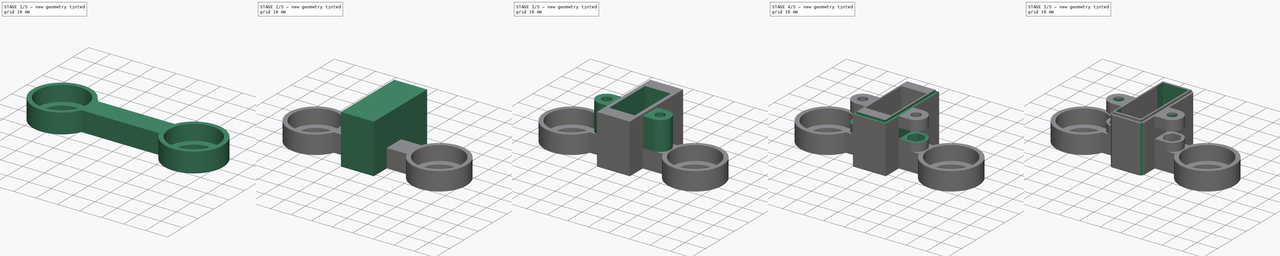
[diagram: build sequence overview — one tinted view per stage of 5, left to right]
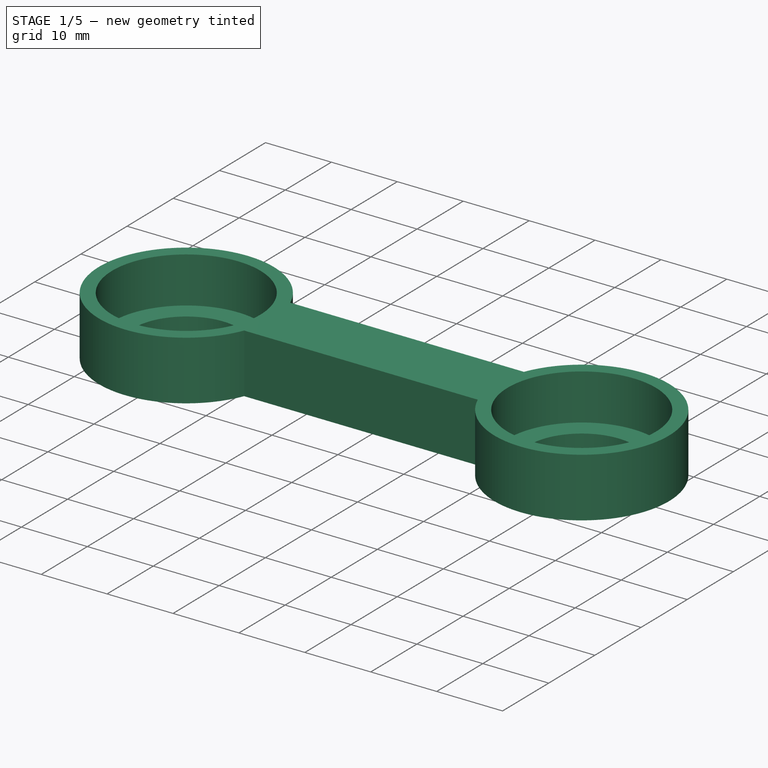
[diagram: stage 1 of 5 — iso view after this stage's code; geometry added in this stage tinted green]
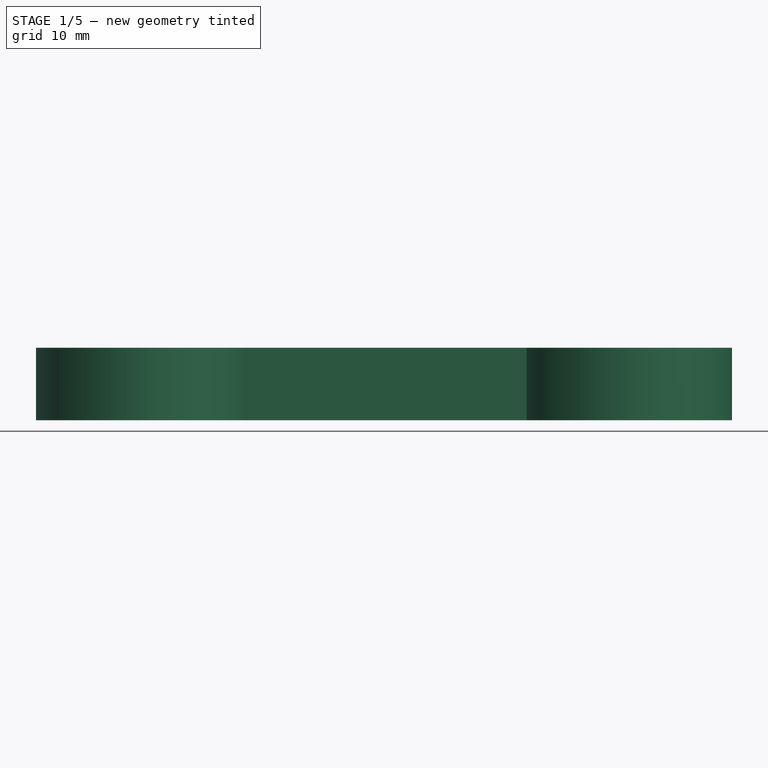
[diagram: stage 1 of 5 — front view after this stage's code; geometry added in this stage tinted green]
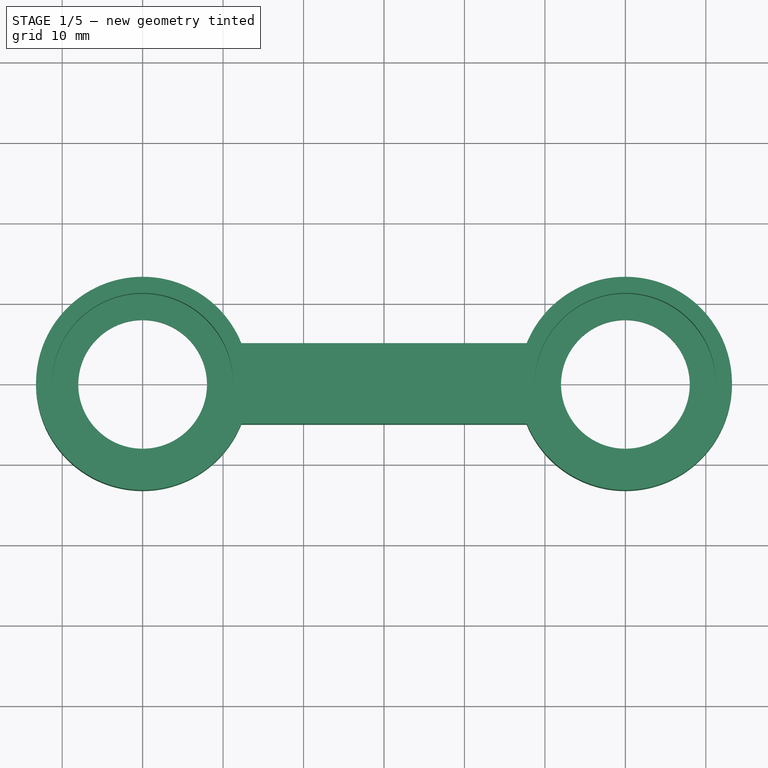
[diagram: stage 1 of 5 — top view after this stage's code; geometry added in this stage tinted green]
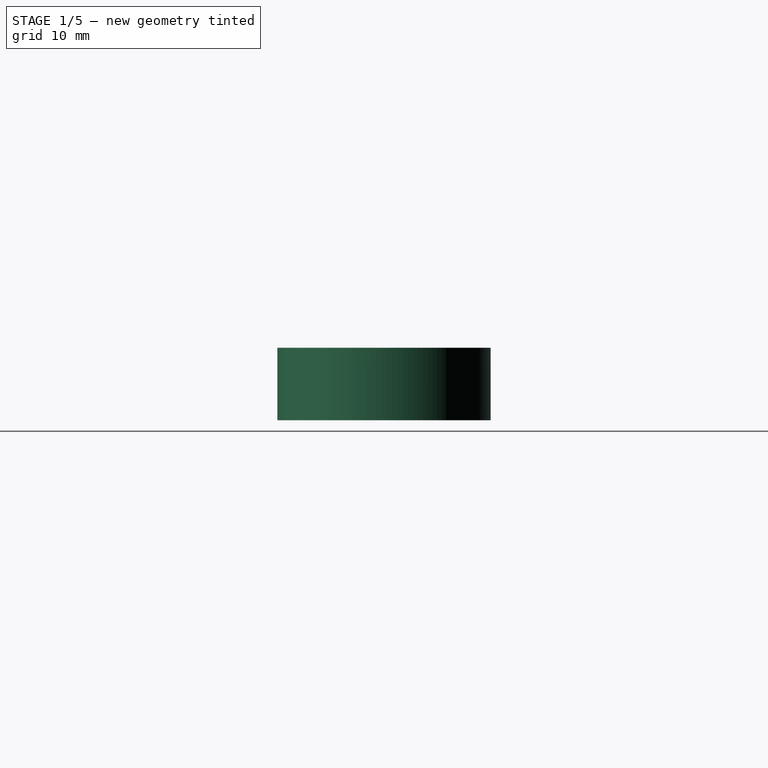
[diagram: stage 1 of 5 — right view after this stage's code; geometry added in this stage tinted green]
FCSTD DOCUMENT  (FreeCAD 1.0R38641 +678 (Git))
Label: servo-box
License: All rights reserved
LicenseURL: https://en.wikipedia.org/wiki/All_rights_reserved
objects: Sketcher::SketchObject×15, PartDesign::Pocket×11, PartDesign::Pad×4, PartDesign::Fillet×1, PartDesign::Body×1
note: 79 computed .brp shape members not serialized (recipe doc carries the construction recipe); baked Part::Feature solids carry a one-line shape summary decoded from their .brp

FEATURE [Sketcher::SketchObject] Sketch033
  ArcFitTolerance = 0
  AttachmentSupport = -> [XY_Plane004]
  FullyConstrained = true
  MakeInternals = false
  MapMode = 5
  sketch-geometry (4):
    g0: ArcOfCircle CenterX=-0.000782384 CenterY=0 CenterZ=0 NormalX=0 NormalY=0 NormalZ=1 AngleXU=0 Radius=13.25 StartAngle=0.386942 EndAngle=5.89624
    g1: ArcOfCircle CenterX=60 CenterY=-1.33e-14 CenterZ=0 NormalX=0 NormalY=0 NormalZ=1 AngleXU=0 Radius=13.25 StartAngle=3.52853 EndAngle=9.03784
    g2: LineSegment StartX=12.2696 StartY=5 StartZ=0 EndX=47.7296 EndY=5 EndZ=0
    g3: LineSegment StartX=12.2696 StartY=-5 StartZ=0 EndX=47.7296 EndY=-5 EndZ=0
  constraints (14):
    c: Diameter(g0) = 26.5
    c: Diameter(g1) = 26.5
    c: Horizontal(g2)
    c: Horizontal(g3)
    c: Coincident(g2,g0)
    c: Coincident(g3,g0)
    c: Coincident(g2,g1)
    c: Coincident(g3,g1)
    c: DistanceX(g2,g2) = 35.46
    c: DistanceX(g3,g3) = 35.46
    c: PointOnObject(g0,g-1)
    c: Distance(g0,g2) = 5
    c: Distance(g0,g3) = 5
    c: DistanceX(g-2,g1) = 60
FEATURE [PartDesign::Pad] Pad013
  Direction = (0,0,1)
  Length = 9
  Length2 = 10
  Profile = -> Sketch033
  ReferenceAxis = -> Sketch033 [N_Axis]
  Suppressed = false
  Type = 0
FEATURE [Sketcher::SketchObject] Sketch034
  ArcFitTolerance = 0
  AttachmentSupport = -> [Pad013]
  FullyConstrained = true
  MakeInternals = false
  MapMode = 5
  Placement = pos=(0,0,9) rot=(0,0,1;0rad)
  sketch-geometry (2):
    g0: Circle CenterX=0 CenterY=0 CenterZ=0 NormalX=0 NormalY=0 NormalZ=1 AngleXU=0 Radius=11.25
    g1: Circle CenterX=60 CenterY=0 CenterZ=0 NormalX=0 NormalY=0 NormalZ=1 AngleXU=0 Radius=11.25
  constraints (5):
    c: Coincident(g0,g-1)
    c: Diameter(g0) = 22.5
    c: PointOnObject(g1,g-1)
    c: Equal(g1,g0)
    c: Distance(g1,g0) = 60
FEATURE [PartDesign::Pocket] Pocket003
  BaseFeature = -> Pad013
  Direction = (0,0,-1)
  Length = 7
  Length2 = 5
  Profile = -> Sketch034
  ReferenceAxis = -> Sketch034 [N_Axis]
  Suppressed = false
  Type = 0
FEATURE [Sketcher::SketchObject] Sketch035
  ArcFitTolerance = 0
  AttachmentSupport = -> [Pocket003]
  FullyConstrained = true
  MakeInternals = false
  MapMode = 5
  Placement = pos=(0,0,0) rot=(1,0,0;3.14159rad)
  sketch-geometry (2):
    g0: Circle CenterX=0 CenterY=0 CenterZ=0 NormalX=0 NormalY=0 NormalZ=1 AngleXU=0 Radius=8
    g1: Circle CenterX=60 CenterY=0 CenterZ=0 NormalX=0 NormalY=0 NormalZ=1 AngleXU=0 Radius=8
  constraints (5):
    c: Coincident(g0,g-1)
    c: Diameter(g0) = 16
    c: PointOnObject(g1,g-1)
    c: Equal(g1,g0)
    c: Distance(g0,g1) = 60
FEATURE [PartDesign::Pocket] Pocket004
  BaseFeature = -> Pocket003
  Direction = (0,0,1)
  Length = 5
  Length2 = 5
  Profile = -> Sketch035
  ReferenceAxis = -> Sketch035 [N_Axis]
  Suppressed = false
  Type = 0
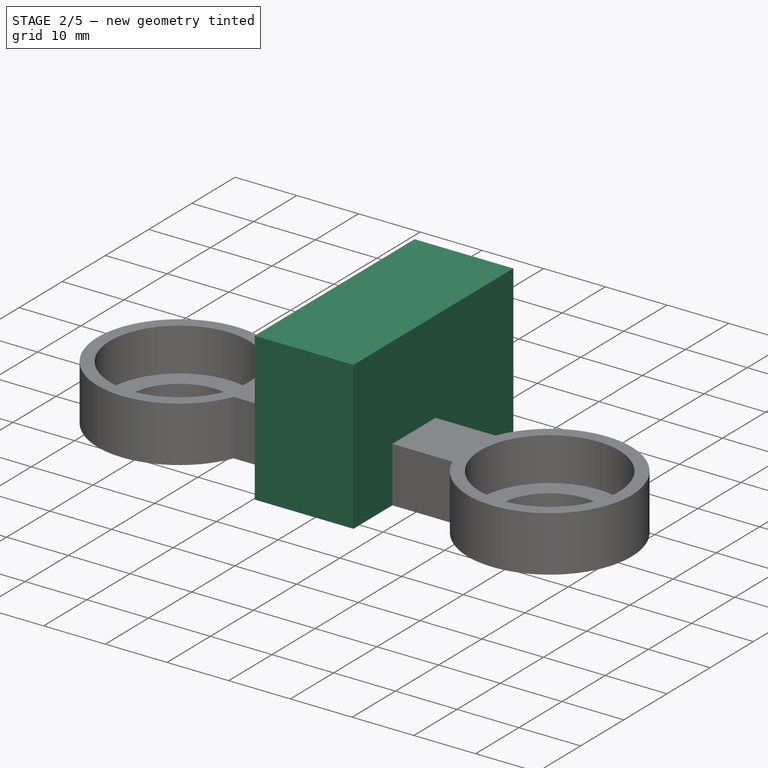
[diagram: stage 2 of 5 — iso view after this stage's code; geometry added in this stage tinted green]
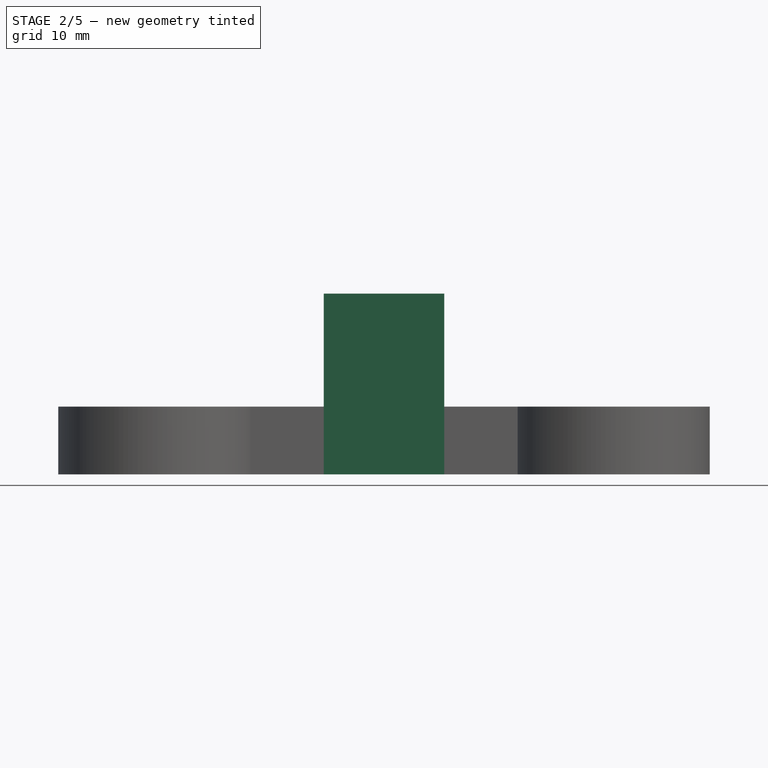
[diagram: stage 2 of 5 — front view after this stage's code; geometry added in this stage tinted green]
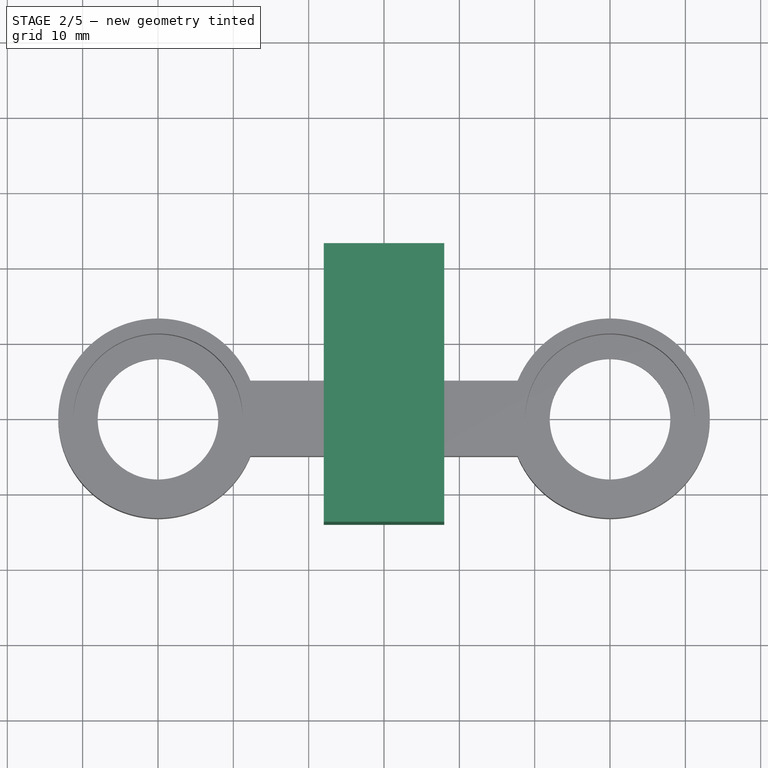
[diagram: stage 2 of 5 — top view after this stage's code; geometry added in this stage tinted green]
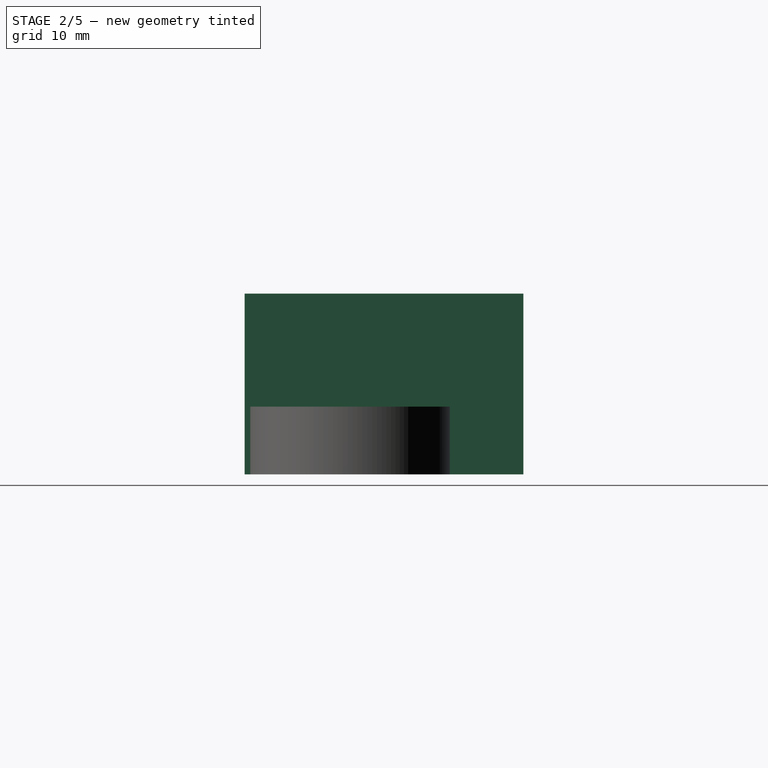
[diagram: stage 2 of 5 — right view after this stage's code; geometry added in this stage tinted green]
FEATURE [Sketcher::SketchObject] Sketch040
  ArcFitTolerance = 0
  AttachmentSupport = -> [Pocket004]
  FullyConstrained = true
  MakeInternals = false
  MapMode = 5
  Placement = pos=(0,0,0) rot=(1,0,0;3.14159rad)
  sketch-geometry (4):
    g0: LineSegment StartX=38 StartY=-23 StartZ=0 EndX=22 EndY=-23 EndZ=0
    g1: LineSegment StartX=22 StartY=-23 StartZ=0 EndX=22 EndY=14 EndZ=0
    g2: LineSegment StartX=22 StartY=14 StartZ=0 EndX=38 EndY=14 EndZ=0
    g3: LineSegment StartX=38 StartY=14 StartZ=0 EndX=38 EndY=-23 EndZ=0
  constraints (12):
    c: Horizontal(g0)
    c: Coincident(g1,g0)
    c: Vertical(g1)
    c: Coincident(g2,g1)
    c: Horizontal(g2)
    c: Coincident(g3,g2)
    c: Coincident(g3,g0)
    c: Vertical(g3)
    c: Distance(g1) = 37
    c: Distance(g-1,g2) = 14
    c: DistanceX(g0,g0) = 16
    c: Distance(g-1,g1) = 22
FEATURE [PartDesign::Pad] Pad016
  BaseFeature = -> Pocket004
  Direction = (0,0,-1)
  Length = 24
  Length2 = 10
  Profile = -> Sketch040
  ReferenceAxis = -> Sketch040 [N_Axis]
  Reversed = true
  Suppressed = false
  Type = 0
FEATURE [Sketcher::SketchObject] Sketch042
  ArcFitTolerance = 0
  FullyConstrained = true
  MakeInternals = false
  MapMode = 5
  Placement = pos=(0,0,0) rot=(1,0,0;3.14159rad)
  sketch-geometry (8):
    g0: LineSegment StartX=22 StartY=-16 StartZ=0 EndX=38 EndY=-16 EndZ=0
    g1: LineSegment StartX=38 StartY=-16 StartZ=0 EndX=38 EndY=-23 EndZ=0
    g2: LineSegment StartX=38 StartY=-23 StartZ=0 EndX=22 EndY=-23 EndZ=0
    g3: LineSegment StartX=22 StartY=-23 StartZ=0 EndX=22 EndY=-16 EndZ=0
    g4: LineSegment StartX=22 StartY=7 StartZ=0 EndX=38 EndY=7 EndZ=0
    g5: LineSegment StartX=38 StartY=7 StartZ=0 EndX=38 EndY=14 EndZ=0
    g6: LineSegment StartX=38 StartY=14 StartZ=0 EndX=22 EndY=14 EndZ=0
    g7: LineSegment StartX=22 StartY=14 StartZ=0 EndX=22 EndY=7 EndZ=0
  constraints (24):
    c: Coincident(g0,g1)
    c: Coincident(g1,g2)
    c: Coincident(g2,g3)
    c: Coincident(g3,g0)
    c: Horizontal(g0)
    c: Horizontal(g2)
    c: Vertical(g1)
    c: Vertical(g3)
    c: Coincident(g4,g5)
    c: Coincident(g5,g6)
    c: Coincident(g6,g7)
    c: Coincident(g7,g4)
    c: Horizontal(g4)
    c: Horizontal(g6)
    c: Vertical(g5)
    c: Vertical(g7)
    c: DistanceX(g6,g6) = 16
    c: DistanceY(g5,g5) = 7
    c: Equal(g2,g6)
    c: Equal(g1,g5)
    c: Distance(g-1,g4) = 7
    c: Distance(g-1,g7) = 22
    c: Distance(g-1,g0) = 16
    c: Distance(g-1,g3) = 22
FEATURE [PartDesign::Pad] Pad017
  BaseFeature = -> Pad016
  Direction = (0,-1e-16,-1)
  Length = 12
  Length2 = 10
  Profile = -> Sketch042
  ReferenceAxis = -> Sketch042 [N_Axis]
  Reversed = true
  Suppressed = false
  Type = 0
FEATURE [Sketcher::SketchObject] Sketch043
  ArcFitTolerance = 0
  AttachmentSupport = -> [Pad017]
  FullyConstrained = true
  MakeInternals = false
  MapMode = 5
  Placement = pos=(0,0,0) rot=(1,0,0;3.14159rad)
  sketch-geometry (8):
    g0: LineSegment StartX=23.75 StartY=7 StartZ=0 EndX=36.25 EndY=7 EndZ=0
    g1: LineSegment StartX=36.25 StartY=7 StartZ=0 EndX=36.25 EndY=12.25 EndZ=0
    g2: LineSegment StartX=36.25 StartY=12.25 StartZ=0 EndX=23.75 EndY=12.25 EndZ=0
    g3: LineSegment StartX=23.75 StartY=12.25 StartZ=0 EndX=23.75 EndY=7 EndZ=0
    g4: LineSegment StartX=23.75 StartY=-16 StartZ=0 EndX=36.25 EndY=-16 EndZ=0
    g5: LineSegment StartX=36.25 StartY=-16 StartZ=0 EndX=36.25 EndY=-21.25 EndZ=0
    g6: LineSegment StartX=36.25 StartY=-21.25 StartZ=0 EndX=23.75 EndY=-21.25 EndZ=0
    g7: LineSegment StartX=23.75 StartY=-21.25 StartZ=0 EndX=23.75 EndY=-16 EndZ=0
  constraints (24):
    c: Coincident(g0,g1)
    c: Coincident(g1,g2)
    c: Coincident(g2,g3)
    c: Coincident(g3,g0)
    c: Horizontal(g0)
    c: Horizontal(g2)
    c: Vertical(g1)
    c: Vertical(g3)
    c: Coincident(g4,g5)
    c: Coincident(g5,g6)
    c: Coincident(g6,g7)
    c: Coincident(g7,g4)
    c: Horizontal(g4)
    c: Horizontal(g6)
    c: Vertical(g5)
    c: Vertical(g7)
    c: DistanceX(g2,g2) = 12.5
    c: DistanceY(g1,g1) = 5.25
    c: Equal(g1,g5)
    c: Equal(g2,g4)
    c: Distance(g-1,g4) = 16
    c: Distance(g-1,g7) = 23.75
    c: Distance(g-1,g3) = 23.75
    c: Distance(g-1,g0) = 7
FEATURE [PartDesign::Pocket] Pocket008
  BaseFeature = -> Pad017
  Direction = (0,0,1)
  Length = 10
  Length2 = 5
  Profile = -> Sketch043
  ReferenceAxis = -> Sketch043 [N_Axis]
  Suppressed = false
  Type = 0
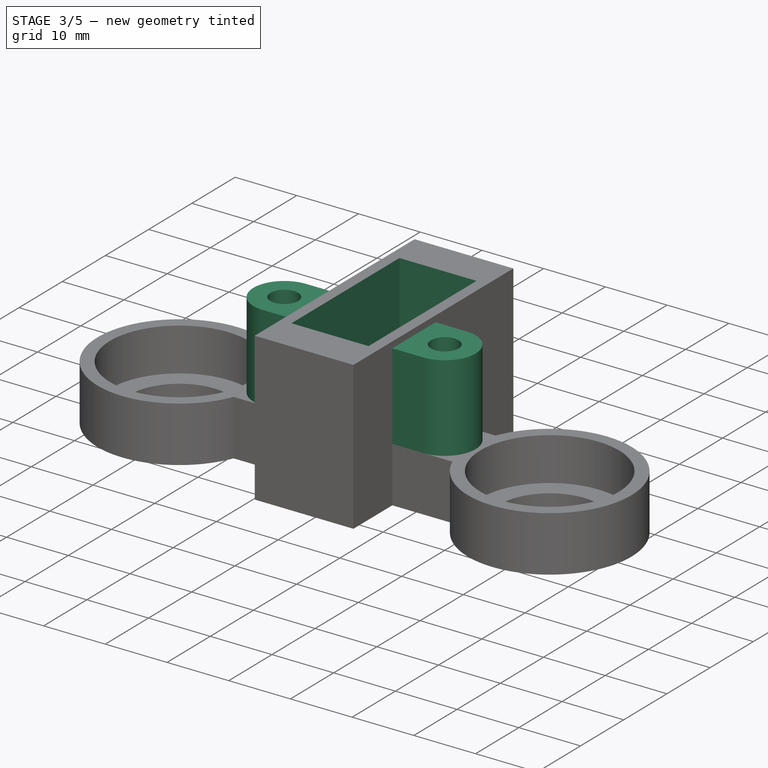
[diagram: stage 3 of 5 — iso view after this stage's code; geometry added in this stage tinted green]
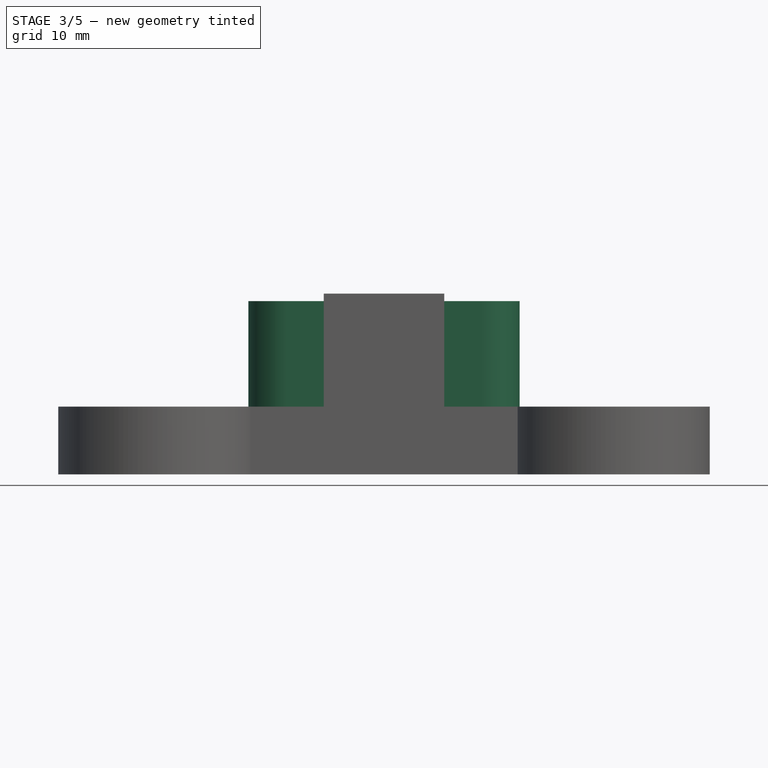
[diagram: stage 3 of 5 — front view after this stage's code; geometry added in this stage tinted green]
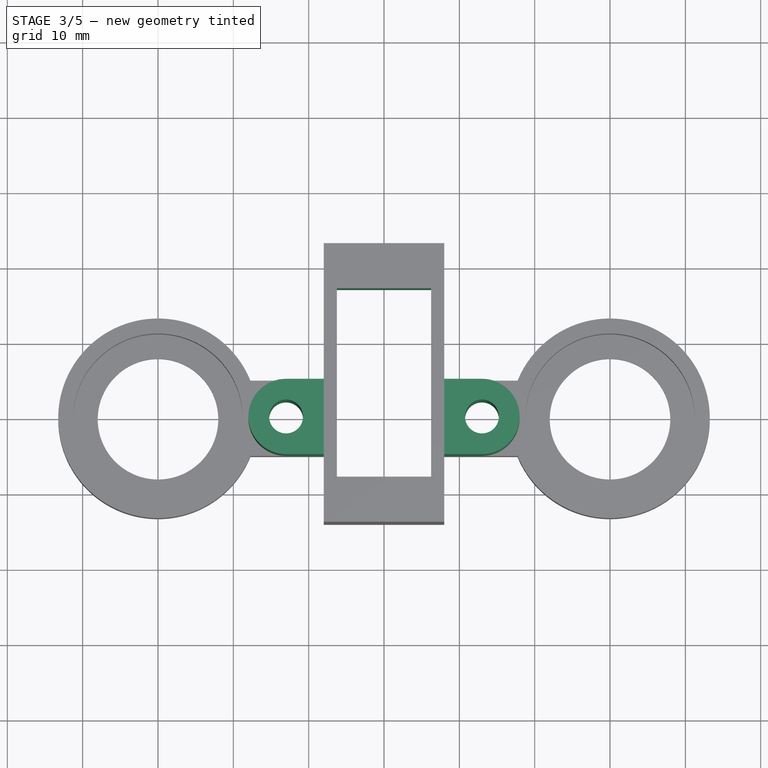
[diagram: stage 3 of 5 — top view after this stage's code; geometry added in this stage tinted green]
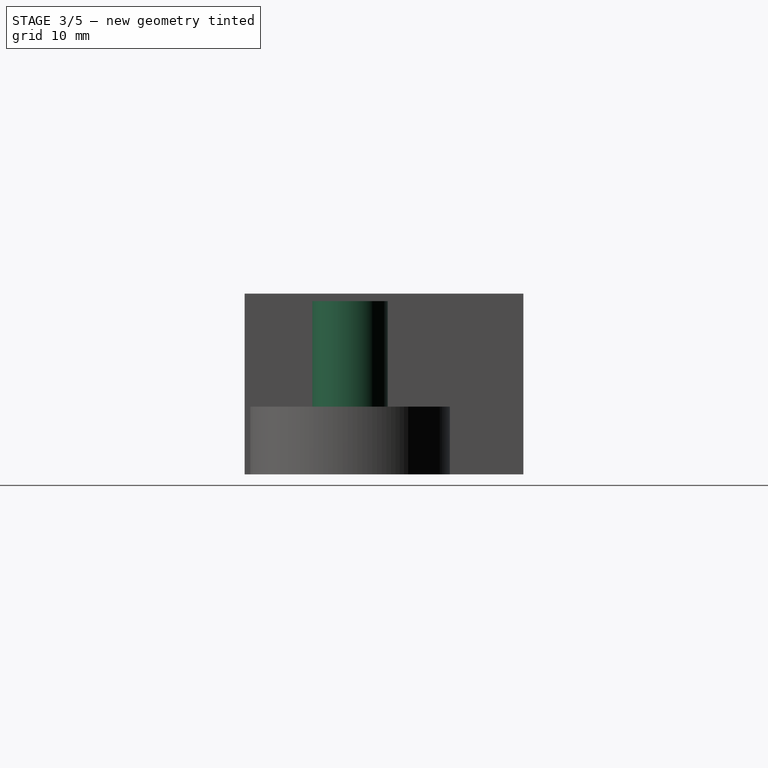
[diagram: stage 3 of 5 — right view after this stage's code; geometry added in this stage tinted green]
FEATURE [Sketcher::SketchObject] Sketch044
  ArcFitTolerance = 0
  AttachmentSupport = -> [Pocket008]
  FullyConstrained = true
  MakeInternals = false
  MapMode = 5
  Placement = pos=(0,0,10) rot=(1,0,0;3.14159rad)
  sketch-geometry (2):
    g0: Circle CenterX=30 CenterY=-19 CenterZ=0 NormalX=0 NormalY=0 NormalZ=1 AngleXU=0 Radius=1
    g1: Circle CenterX=30 CenterY=10 CenterZ=0 NormalX=0 NormalY=0 NormalZ=1 AngleXU=0 Radius=1
  constraints (6):
    c: Diameter(g0) = 2
    c: Equal(g1,g0)
    c: DistanceY(g-1,g1) = 10
    c: DistanceX(g-2,g1) = 30
    c: DistanceY(g-1,g0) = -19
    c: DistanceX(g-2,g0) = 30
FEATURE [PartDesign::Pocket] Pocket009
  BaseFeature = -> Pocket008
  Direction = (0,0,1)
  Length = 4
  Length2 = 5
  Profile = -> Sketch044
  ReferenceAxis = -> Sketch044 [N_Axis]
  Suppressed = false
  Type = 4
FEATURE [Sketcher::SketchObject] Sketch045
  ArcFitTolerance = 0
  AttachmentSupport = -> [Pocket009]
  FullyConstrained = true
  MakeInternals = false
  MapMode = 5
  Placement = pos=(0,0,0) rot=(1,0,0;3.14159rad)
  sketch-geometry (4):
    g0: LineSegment StartX=23.75 StartY=8 StartZ=0 EndX=36.25 EndY=8 EndZ=0
    g1: LineSegment StartX=36.25 StartY=8 StartZ=0 EndX=36.25 EndY=-17 EndZ=0
    g2: LineSegment StartX=36.25 StartY=-17 StartZ=0 EndX=23.75 EndY=-17 EndZ=0
    g3: LineSegment StartX=23.75 StartY=-17 StartZ=0 EndX=23.75 EndY=8 EndZ=0
  constraints (12):
    c: Coincident(g0,g1)
    c: Coincident(g1,g2)
    c: Coincident(g2,g3)
    c: Coincident(g3,g0)
    c: Horizontal(g0)
    c: Horizontal(g2)
    c: Vertical(g1)
    c: Vertical(g3)
    c: DistanceX(g0,g0) = 12.5
    c: DistanceY(g3,g3) = 25
    c: Distance(g-1,g3) = 23.75
    c: Distance(g-1,g2) = 17
FEATURE [PartDesign::Pocket] Pocket010
  BaseFeature = -> Pocket009
  Direction = (0,0,1)
  Length = 50
  Length2 = 5
  Profile = -> Sketch045
  ReferenceAxis = -> Sketch045 [N_Axis]
  Suppressed = false
  Type = 0
FEATURE [Sketcher::SketchObject] Sketch071
  ArcFitTolerance = 0
  FullyConstrained = true
  MakeInternals = false
  MapMode = 5
  Placement = pos=(0,0,9) rot=(0,0,1;0rad)
  sketch-geometry (10):
    g0: ArcOfCircle CenterX=43 CenterY=0 CenterZ=0 NormalX=0 NormalY=0 NormalZ=1 AngleXU=0 Radius=5 StartAngle=4.71239 EndAngle=7.85399
    g1: ArcOfCircle CenterX=17 CenterY=0 CenterZ=0 NormalX=0 NormalY=0 NormalZ=1 AngleXU=0 Radius=5 StartAngle=1.5708 EndAngle=4.71239
    g2: LineSegment StartX=17 StartY=5 StartZ=0 EndX=23 EndY=5 EndZ=0
    g3: LineSegment StartX=23 StartY=5 StartZ=0 EndX=23 EndY=-5 EndZ=0
    g4: LineSegment StartX=23 StartY=-5 StartZ=0 EndX=17 EndY=-5 EndZ=0
    g5: LineSegment StartX=37 StartY=5 StartZ=0 EndX=43 EndY=5 EndZ=0
    g6: LineSegment StartX=37 StartY=-5 StartZ=0 EndX=43 EndY=-5 EndZ=0
    g7: LineSegment StartX=37 StartY=5 StartZ=0 EndX=37 EndY=-5 EndZ=0
    g8: Circle CenterX=17 CenterY=0 CenterZ=0 NormalX=0 NormalY=0 NormalZ=1 AngleXU=0 Radius=2.25
    g9: Circle CenterX=43 CenterY=0 CenterZ=0 NormalX=0 NormalY=0 NormalZ=1 AngleXU=0 Radius=2.25
  constraints (28):
    c: PointOnObject(g0,g-1)
    c: PointOnObject(g1,g-1)
    c: Diameter(g0) = 10
    c: Diameter(g1) = 10
    c: DistanceX(g-2,g1) = 17
    c: DistanceX(g-2,g0) = 43
    c: Horizontal(g2)
    c: Coincident(g3,g2)
    c: Vertical(g3)
    c: Coincident(g4,g3)
    c: Horizontal(g4)
    c: Tangent(g1,g4) = 1.5708
    c: Coincident(g1,g2)
    c: Horizontal(g5)
    c: Horizontal(g6)
    c: Coincident(g7,g5)
    c: Coincident(g7,g6)
    c: Vertical(g7)
    c: Coincident(g0,g5)
    c: Tangent(g0,g6) = -1.5708
    c: Distance(g-1,g3) = 23
    c: Distance(g-1,g7) = 37
    c: DistanceY(g3,g3) = 10
    c: Equal(g7,g3)
    c: Coincident(g8,g1)
    c: Diameter(g8) = 4.5
    c: Coincident(g9,g0)
    c: Diameter(g9) = 4.5
FEATURE [PartDesign::Pad] Pad027
  BaseFeature = -> Pocket010
  Direction = (0,0,1)
  Length = 14
  Length2 = 10
  Profile = -> Sketch071
  ReferenceAxis = -> Sketch071 [N_Axis]
  Suppressed = false
  Type = 0
FEATURE [Sketcher::SketchObject] Sketch072
  ArcFitTolerance = 0
  AttachmentSupport = -> [Pad027]
  FullyConstrained = true
  MakeInternals = false
  MapMode = 5
  Placement = pos=(0,0,0) rot=(1,0,0;3.14159rad)
  sketch-geometry (2):
    g0: Circle CenterX=17 CenterY=0 CenterZ=0 NormalX=0 NormalY=0 NormalZ=1 AngleXU=0 Radius=2.25
    g1: Circle CenterX=43 CenterY=0 CenterZ=0 NormalX=0 NormalY=0 NormalZ=1 AngleXU=0 Radius=2.25
  constraints (6):
    c: PointOnObject(g0,g-1)
    c: PointOnObject(g1,g-1)
    c: Diameter(g0) = 4.5
    c: Diameter(g1) = 4.5
    c: DistanceX(g-2,g0) = 17
    c: DistanceX(g-2,g1) = 43
FEATURE [PartDesign::Pocket] Pocket026
  BaseFeature = -> Pad027
  Direction = (0,0,1)
  Length = 10
  Length2 = 5
  Profile = -> Sketch072
  ReferenceAxis = -> Sketch072 [N_Axis]
  Suppressed = false
  Type = 0
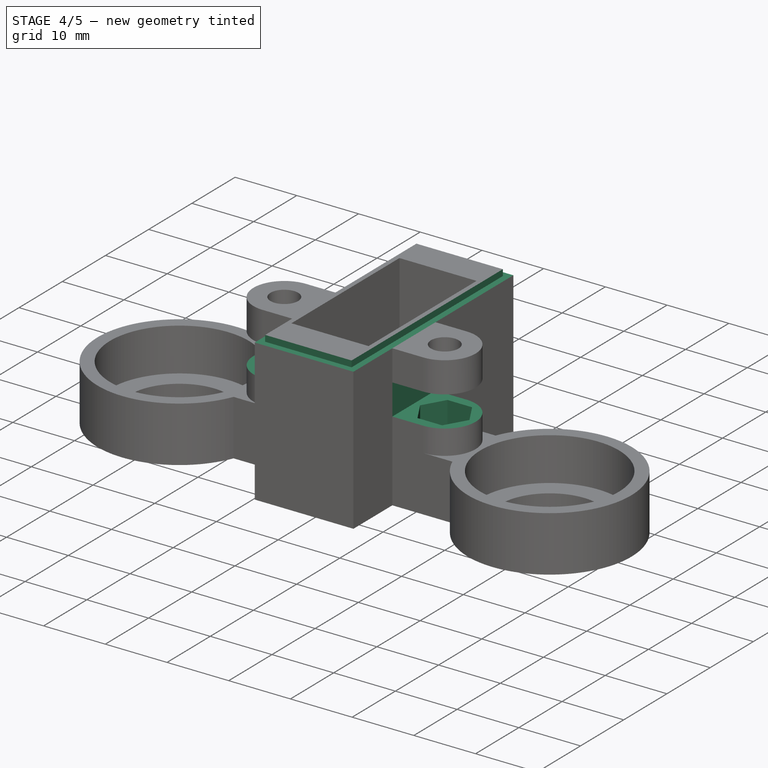
[diagram: stage 4 of 5 — iso view after this stage's code; geometry added in this stage tinted green]
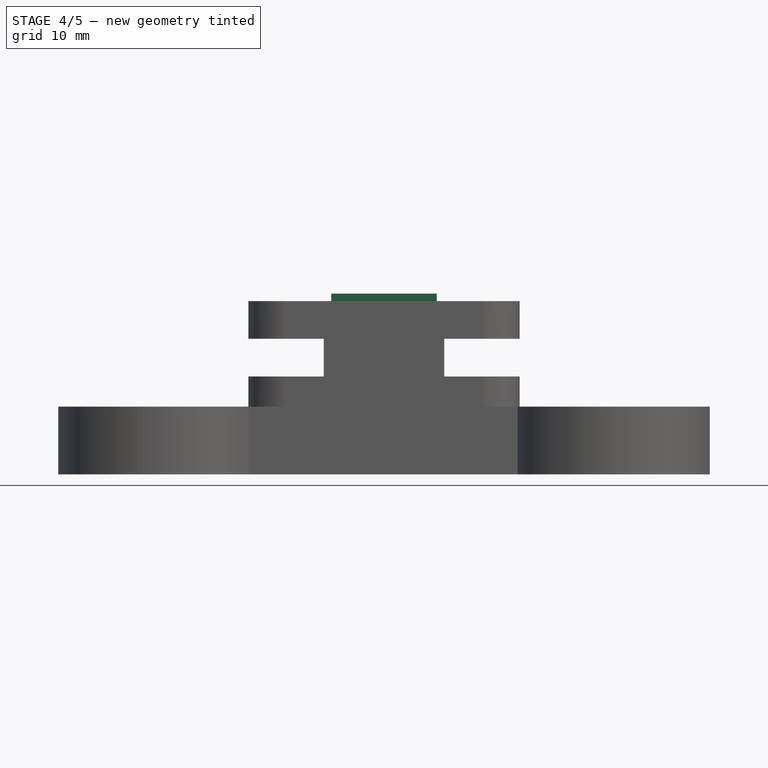
[diagram: stage 4 of 5 — front view after this stage's code; geometry added in this stage tinted green]
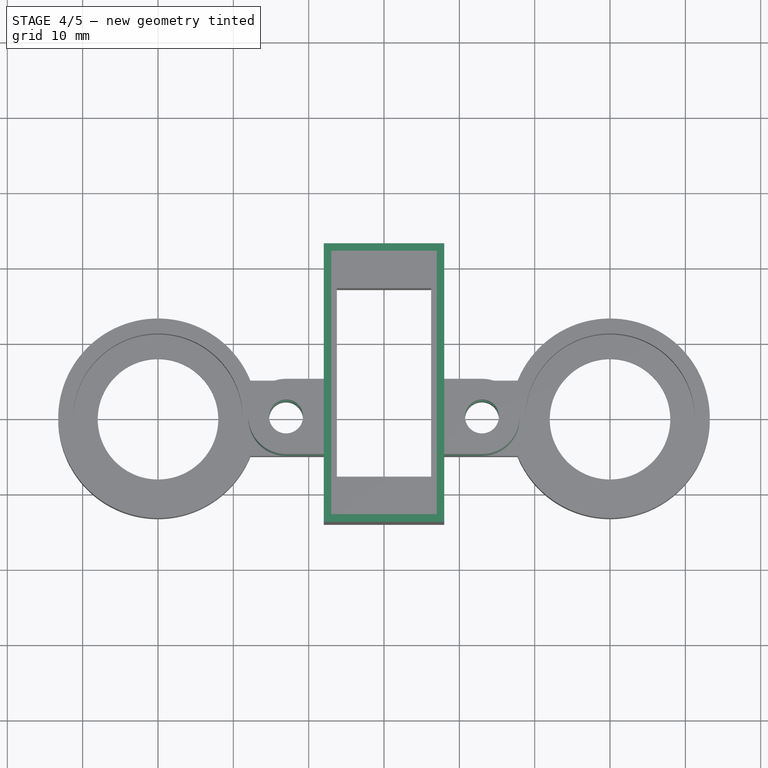
[diagram: stage 4 of 5 — top view after this stage's code; geometry added in this stage tinted green]
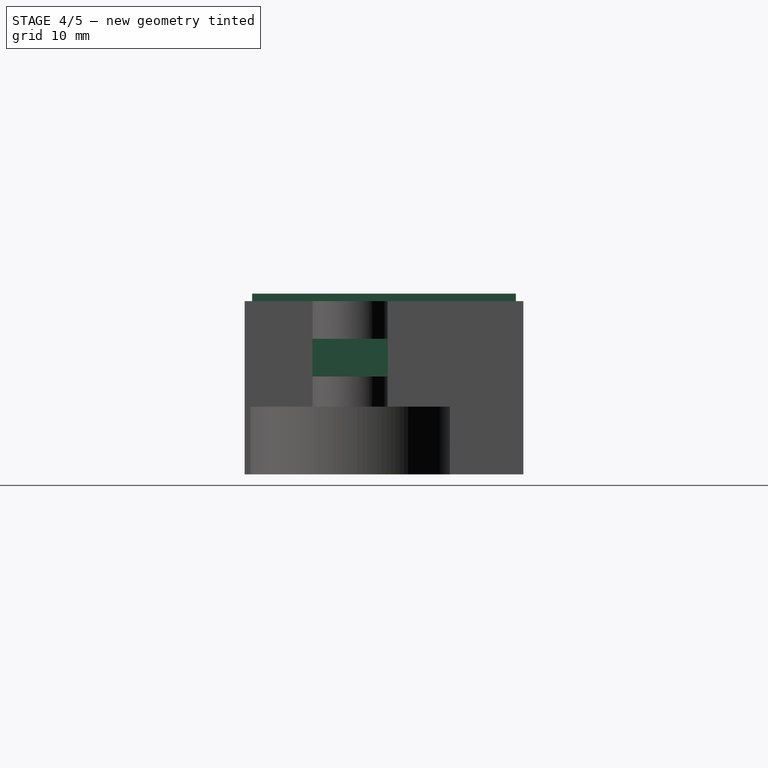
[diagram: stage 4 of 5 — right view after this stage's code; geometry added in this stage tinted green]
FEATURE [Sketcher::SketchObject] Sketch073
  ArcFitTolerance = 0
  AttachmentSupport = -> [Pocket026]
  FullyConstrained = true
  MakeInternals = false
  MapMode = 5
  Placement = pos=(0,0,24) rot=(0,0,1;0rad)
  sketch-geometry (8):
    g0: LineSegment StartX=23 StartY=22 StartZ=0 EndX=23 EndY=-13 EndZ=0
    g1: LineSegment StartX=22 StartY=-14 StartZ=0 EndX=22 EndY=23 EndZ=0
    g2: LineSegment StartX=37 StartY=22 StartZ=0 EndX=37 EndY=-13 EndZ=0
    g3: LineSegment StartX=38 StartY=-14 StartZ=0 EndX=38 EndY=23 EndZ=0
    g4: LineSegment StartX=22 StartY=23 StartZ=0 EndX=38 EndY=23 EndZ=0
    g5: LineSegment StartX=22 StartY=-14 StartZ=0 EndX=38 EndY=-14 EndZ=0
    g6: LineSegment StartX=23 StartY=-13 StartZ=0 EndX=37 EndY=-13 EndZ=0
    g7: LineSegment StartX=23 StartY=22 StartZ=0 EndX=37 EndY=22 EndZ=0
  constraints (24):
    c: Vertical(g0)
    c: Vertical(g1)
    c: Vertical(g2)
    c: Vertical(g3)
    c: Distance(g0,g2) = 14
    c: DistanceY(g0,g0) = 35
    c: Distance(g-1,g1) = 22
    c: Equal(g0,g2)
    c: Coincident(g4,g1)
    c: Coincident(g4,g3)
    c: Horizontal(g4)
    c: Coincident(g5,g1)
    c: Coincident(g5,g3)
    c: Horizontal(g5)
    c: Coincident(g6,g0)
    c: Coincident(g6,g2)
    c: Horizontal(g6)
    c: Coincident(g7,g0)
    c: Coincident(g7,g2)
    c: Horizontal(g7)
    c: DistanceX(g5,g5) = 16
    c: Distance(g2,g3) = 1
    c: Distance(g-1,g6) = 13
    c: Distance(g-1,g5) = 14
FEATURE [PartDesign::Pocket] Pocket035
  BaseFeature = -> Pocket026
  Direction = (0,0,-1)
  Length = 1
  Length2 = 5
  Profile = -> Sketch073
  ReferenceAxis = -> Sketch073 [N_Axis]
  Suppressed = false
  Type = 0
FEATURE [Sketcher::SketchObject] Sketch084
  ArcFitTolerance = 0
  AttachmentSupport = -> [Pocket035]
  FullyConstrained = true
  MakeInternals = false
  MapMode = 5
  Placement = pos=(0,-5,0) rot=(1,0,0;1.5708rad)
  sketch-geometry (8):
    g0: LineSegment StartX=22 StartY=18 StartZ=0 EndX=12 EndY=18 EndZ=0
    g1: LineSegment StartX=12 StartY=18 StartZ=0 EndX=12 EndY=13 EndZ=0
    g2: LineSegment StartX=12 StartY=13 StartZ=0 EndX=22 EndY=13 EndZ=0
    g3: LineSegment StartX=22 StartY=13 StartZ=0 EndX=22 EndY=18 EndZ=0
    g4: LineSegment StartX=38 StartY=18 StartZ=0 EndX=48 EndY=18 EndZ=0
    g5: LineSegment StartX=48 StartY=18 StartZ=0 EndX=48 EndY=13 EndZ=0
    g6: LineSegment StartX=48 StartY=13 StartZ=0 EndX=38 EndY=13 EndZ=0
    g7: LineSegment StartX=38 StartY=13 StartZ=0 EndX=38 EndY=18 EndZ=0
  constraints (24):
    c: Coincident(g0,g1)
    c: Coincident(g1,g2)
    c: Coincident(g2,g3)
    c: Coincident(g3,g0)
    c: Horizontal(g0)
    c: Horizontal(g2)
    c: Vertical(g1)
    c: Vertical(g3)
    c: Coincident(g4,g5)
    c: Coincident(g5,g6)
    c: Coincident(g6,g7)
    c: Coincident(g7,g4)
    c: Horizontal(g4)
    c: Horizontal(g6)
    c: Vertical(g5)
    c: Vertical(g7)
    c: DistanceY(g5,g5) = 5
    c: Distance(g6) = 10
    c: Equal(g5,g1)
    c: Equal(g6,g2)
    c: Distance(g-1,g1) = 12
    c: Distance(g0,g7) = 26
    c: Distance(g-1,g2) = 13
    c: Distance(g-1,g6) = 13
FEATURE [PartDesign::Pocket] Pocket036
  BaseFeature = -> Pocket035
  Direction = (0,1,-2e-16)
  Length = 10
  Length2 = 5
  Profile = -> Sketch084
  ReferenceAxis = -> Sketch084 [N_Axis]
  Suppressed = false
  Type = 0
FEATURE [Sketcher::SketchObject] Sketch085
  ArcFitTolerance = 0
  AttachmentSupport = -> [Pocket036]
  FullyConstrained = true
  MakeInternals = false
  MapMode = 5
  Placement = pos=(0,2.9e-15,13) rot=(0,0,1;0rad)
  sketch-geometry (14):
    g0: LineSegment StartX=13 StartY=0 StartZ=0 EndX=15 EndY=-3.4641 EndZ=0
    g1: LineSegment StartX=15 StartY=-3.4641 StartZ=0 EndX=19 EndY=-3.4641 EndZ=0
    g2: LineSegment StartX=19 StartY=-3.4641 StartZ=0 EndX=21 EndY=0 EndZ=0
    g3: LineSegment StartX=21 StartY=0 StartZ=0 EndX=19 EndY=3.4641 EndZ=0
    g4: LineSegment StartX=19 StartY=3.4641 StartZ=0 EndX=15 EndY=3.4641 EndZ=0
    g5: LineSegment StartX=15 StartY=3.4641 StartZ=0 EndX=13 EndY=0 EndZ=0
    g6: Circle [constr] CenterX=17 CenterY=0 CenterZ=0 NormalX=0 NormalY=0 NormalZ=1 AngleXU=0 Radius=4
    g7: LineSegment StartX=39 StartY=0 StartZ=0 EndX=41 EndY=-3.4641 EndZ=0
    g8: LineSegment StartX=41 StartY=-3.4641 StartZ=0 EndX=45 EndY=-3.4641 EndZ=0
    g9: LineSegment StartX=45 StartY=-3.4641 StartZ=0 EndX=47 EndY=0 EndZ=0
    g10: LineSegment StartX=47 StartY=0 StartZ=0 EndX=45 EndY=3.4641 EndZ=0
    g11: LineSegment StartX=45 StartY=3.4641 StartZ=0 EndX=41 EndY=3.4641 EndZ=0
    g12: LineSegment StartX=41 StartY=3.4641 StartZ=0 EndX=39 EndY=0 EndZ=0
    g13: Circle [constr] CenterX=43 CenterY=0 CenterZ=0 NormalX=0 NormalY=0 NormalZ=1 AngleXU=0 Radius=4
  constraints (34):
    c: Coincident(g0,g1)
    c: Coincident(g1,g2)
    c: Coincident(g2,g3)
    c: Coincident(g3,g4)
    c: Coincident(g4,g5)
    c: Coincident(g5,g0)
    c: Equal(g0, g1-g5) x5
    c: PointOnObject(g0,g6)
    c: PointOnObject(g1,g6)
    c: PointOnObject(g2,g6)
    c: PointOnObject(g3,g6)
    c: PointOnObject(g4,g6)
    c: PointOnObject(g5,g6)
    c: PointOnObject(g6,g-1)
    c: PointOnObject(g5,g-1)
    c: Coincident(g7,g8)
    c: Coincident(g8,g9)
    c: Coincident(g9,g10)
    c: Coincident(g10,g11)
    c: Coincident(g11,g12)
    c: Coincident(g12,g7)
    c: Equal(g7, g8-g12) x5
    c: PointOnObject(g7,g13)
    c: PointOnObject(g8,g13)
    c: PointOnObject(g9,g13)
    c: PointOnObject(g10,g13)
    c: PointOnObject(g11,g13)
    c: PointOnObject(g12,g13)
    c: PointOnObject(g13,g-1)
    c: Horizontal(g11)
    c: Diameter(g6) = 8
    c: Diameter(g13) = 8
    c: DistanceX(g-2,g6) = 17
    c: Distance(g13,g6) = 26
FEATURE [PartDesign::Pocket] Pocket037
  BaseFeature = -> Pocket036
  Direction = (0,0,-1)
  Length = 4
  Length2 = 5
  Profile = -> Sketch085
  ReferenceAxis = -> Sketch085 [N_Axis]
  Suppressed = false
  Type = 0
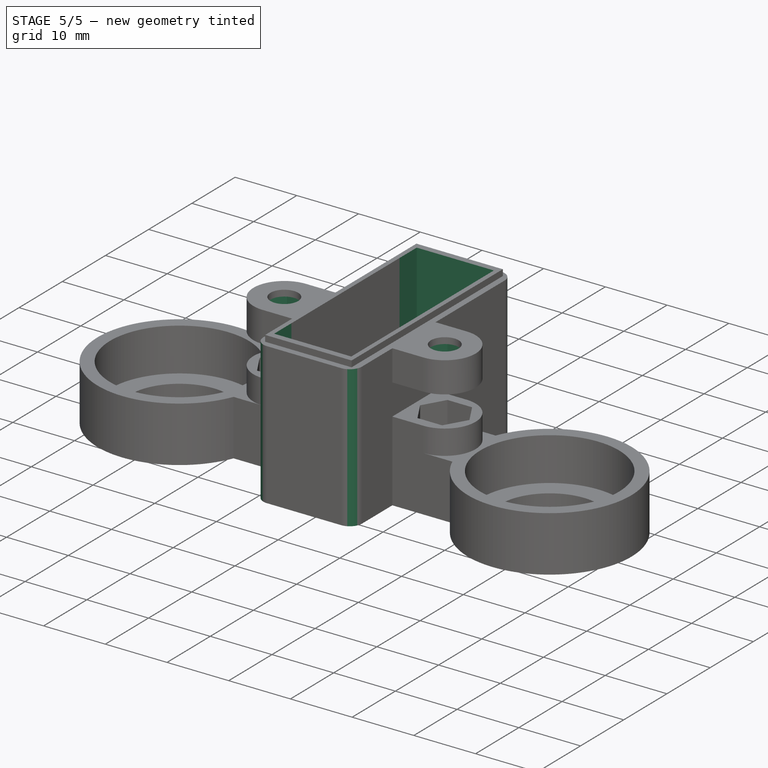
[diagram: stage 5 of 5 — iso view after this stage's code; geometry added in this stage tinted green]
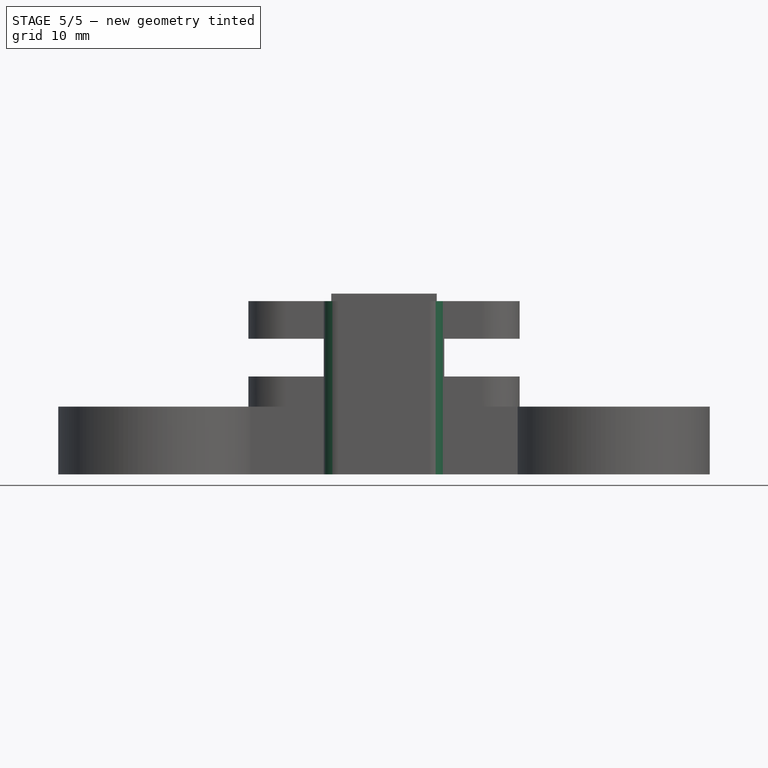
[diagram: stage 5 of 5 — front view after this stage's code; geometry added in this stage tinted green]
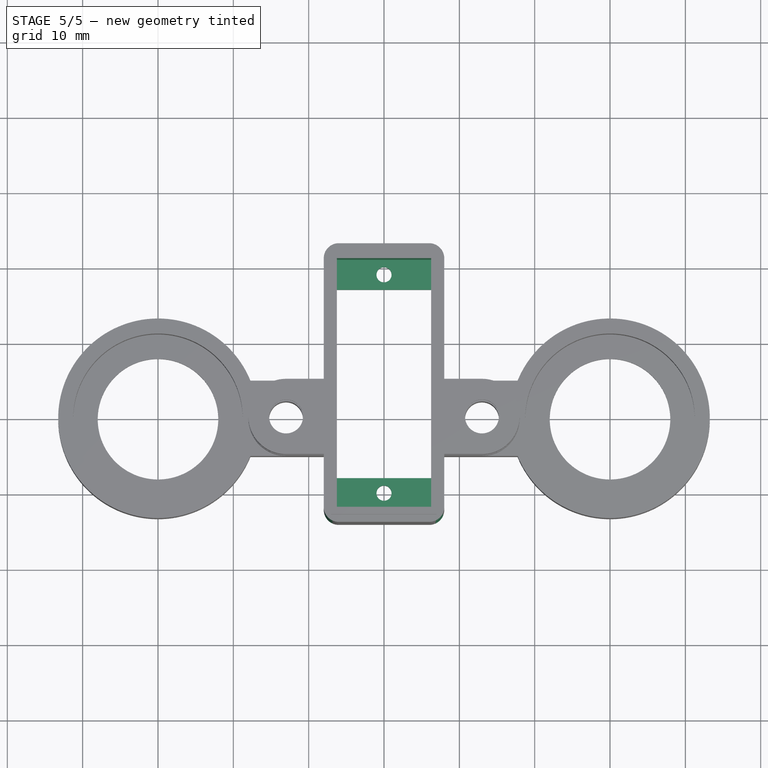
[diagram: stage 5 of 5 — top view after this stage's code; geometry added in this stage tinted green]
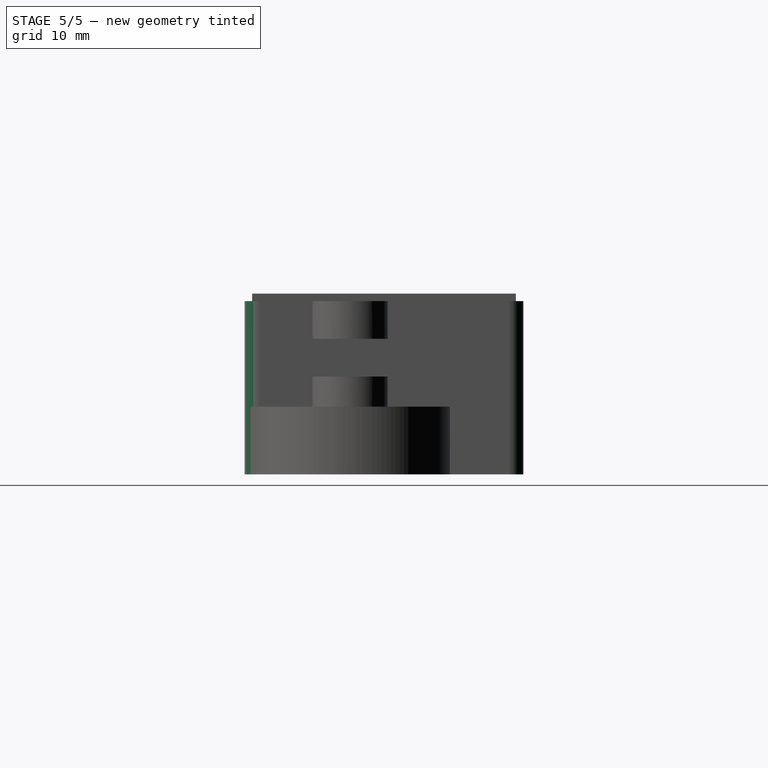
[diagram: stage 5 of 5 — right view after this stage's code; geometry added in this stage tinted green]
FEATURE [Sketcher::SketchObject] Sketch086
  ArcFitTolerance = 0
  AttachmentSupport = -> [Pocket037]
  FullyConstrained = true
  MakeInternals = false
  MapMode = 5
  Placement = pos=(0,4e-15,18) rot=(1,0,0;3.14159rad)
  sketch-geometry (14):
    g0: LineSegment StartX=13 StartY=0 StartZ=0 EndX=15 EndY=-3.4641 EndZ=0
    g1: LineSegment StartX=15 StartY=-3.4641 StartZ=0 EndX=19 EndY=-3.4641 EndZ=0
    g2: LineSegment StartX=19 StartY=-3.4641 StartZ=0 EndX=21 EndY=1.2657e-12 EndZ=0
    g3: LineSegment StartX=21 StartY=1.2657e-12 StartZ=0 EndX=19 EndY=3.4641 EndZ=0
    g4: LineSegment StartX=19 StartY=3.4641 StartZ=0 EndX=15 EndY=3.4641 EndZ=0
    g5: LineSegment StartX=15 StartY=3.4641 StartZ=0 EndX=13 EndY=0 EndZ=0
    g6: Circle [constr] CenterX=17 CenterY=0 CenterZ=0 NormalX=0 NormalY=0 NormalZ=1 AngleXU=0 Radius=4
    g7: LineSegment StartX=39 StartY=0 StartZ=0 EndX=41 EndY=-3.4641 EndZ=0
    g8: LineSegment StartX=41 StartY=-3.4641 StartZ=0 EndX=45 EndY=-3.4641 EndZ=0
    g9: LineSegment StartX=45 StartY=-3.4641 StartZ=0 EndX=47 EndY=1.50933e-11 EndZ=0
    g10: LineSegment StartX=47 StartY=1.50933e-11 StartZ=0 EndX=45 EndY=3.4641 EndZ=0
    g11: LineSegment StartX=45 StartY=3.4641 StartZ=0 EndX=41 EndY=3.4641 EndZ=0
    g12: LineSegment StartX=41 StartY=3.4641 StartZ=0 EndX=39 EndY=0 EndZ=0
    g13: Circle [constr] CenterX=43 CenterY=0 CenterZ=0 NormalX=0 NormalY=0 NormalZ=1 AngleXU=0 Radius=4
  constraints (34):
    c: Coincident(g0,g1)
    c: Coincident(g1,g2)
    c: Coincident(g2,g3)
    c: Coincident(g3,g4)
    c: Coincident(g4,g5)
    c: Coincident(g5,g0)
    c: Equal(g0, g1-g5) x5
    c: PointOnObject(g0,g6)
    c: PointOnObject(g1,g6)
    c: PointOnObject(g2,g6)
    c: PointOnObject(g3,g6)
    c: PointOnObject(g4,g6)
    c: PointOnObject(g5,g6)
    c: PointOnObject(g6,g-1)
    c: PointOnObject(g5,g-1)
    c: Coincident(g7,g8)
    c: Coincident(g8,g9)
    c: Coincident(g9,g10)
    c: Coincident(g10,g11)
    c: Coincident(g11,g12)
    c: Coincident(g12,g7)
    c: Equal(g7, g8-g12) x5
    c: PointOnObject(g7,g13)
    c: PointOnObject(g8,g13)
    c: PointOnObject(g9,g13)
    c: PointOnObject(g10,g13)
    c: PointOnObject(g11,g13)
    c: PointOnObject(g12,g13)
    c: PointOnObject(g13,g-1)
    c: PointOnObject(g12,g-1)
    c: Diameter(g6) = 8
    c: Equal(g13,g6)
    c: DistanceX(g-2,g6) = 17
    c: Distance(g6,g13) = 26
FEATURE [PartDesign::Pocket] Pocket038
  BaseFeature = -> Pocket037
  Direction = (0,0,1)
  Length = 4
  Length2 = 5
  Profile = -> Sketch086
  ReferenceAxis = -> Sketch086 [N_Axis]
  Suppressed = false
  Type = 0
FEATURE [Sketcher::SketchObject] Sketch133
  ArcFitTolerance = 0
  AttachmentSupport = -> [Pocket038]
  FullyConstrained = true
  MakeInternals = false
  MapMode = 5
  Placement = pos=(0,0,24) rot=(0,0,1;0rad)
  sketch-geometry (4):
    g0: LineSegment StartX=23.75 StartY=21 StartZ=0 EndX=36.25 EndY=21 EndZ=0
    g1: LineSegment StartX=36.25 StartY=21 StartZ=0 EndX=36.25 EndY=-12 EndZ=0
    g2: LineSegment StartX=36.25 StartY=-12 StartZ=0 EndX=23.75 EndY=-12 EndZ=0
    g3: LineSegment StartX=23.75 StartY=-12 StartZ=0 EndX=23.75 EndY=21 EndZ=0
  constraints (12):
    c: Coincident(g0,g1)
    c: Coincident(g1,g2)
    c: Coincident(g2,g3)
    c: Coincident(g3,g0)
    c: Horizontal(g0)
    c: Horizontal(g2)
    c: Vertical(g1)
    c: Vertical(g3)
    c: Distance(g-1,g1) = 36.25
    c: Distance(g-1,g0) = 21
    c: Distance(g0) = 12.5
    c: DistanceY(g1,g1) = 33
FEATURE [PartDesign::Pocket] Pocket053
  BaseFeature = -> Pocket038
  Direction = (0,0,-1)
  Length = 12
  Length2 = 5
  Profile = -> Sketch133
  ReferenceAxis = -> Sketch133 [N_Axis]
  Suppressed = false
  Type = 0
FEATURE [PartDesign::Fillet] Fillet
  Base = -> Pocket053 [Edge157,Edge83,Edge34,Edge82,Edge23,Edge69,Edge142,Edge67]
  BaseFeature = -> Pocket053
  Radius = 2
  SupportTransform = false
  Suppressed = false
  UseAllEdges = false
FEATURE [PartDesign::Body] Body004  label="servo-box"
  AllowCompound = false
  Group = -> [Sketch033,Pad013,Sketch034,Pocket003,Sketch035,Pocket004,Sketch040,Pad016,Sketch042,Pad017,Sketch043,Pocket008,Sketch044,Pocket009,Sketch045,Pocket010,Sketch071,Pad027,Sketch072,Pocket026,Sketch073,Pocket035,Sketch084,Pocket036,Sketch085,Pocket037,Sketch086,Pocket038,Sketch133,Pocket053,Fillet]
  Origin = -> Origin004
  Placement = pos=(0,60,0) rot=(0,0,1;1.5708rad)
  Tip = -> Fillet
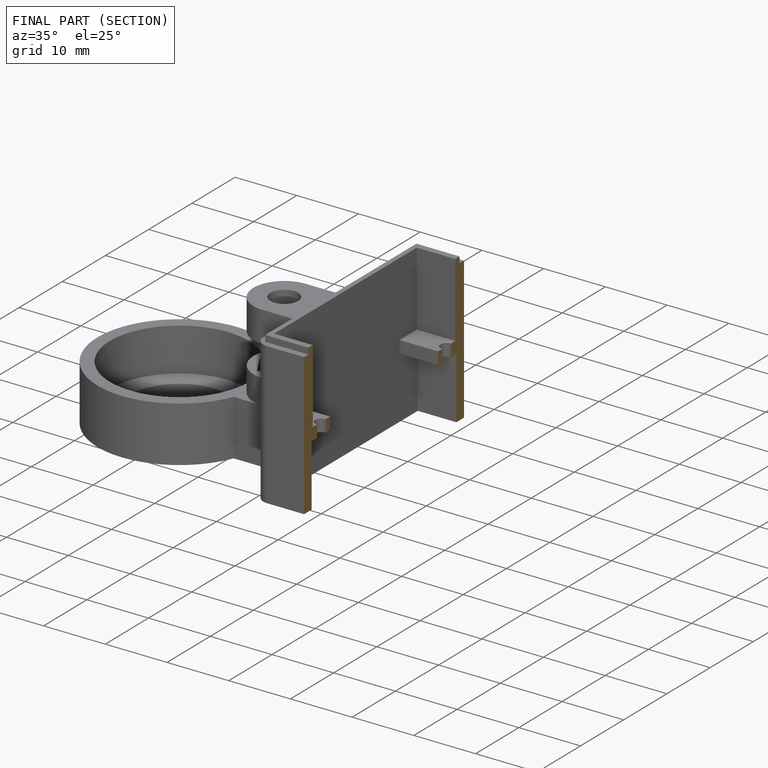
[diagram: finished part — half-section view (interior)]
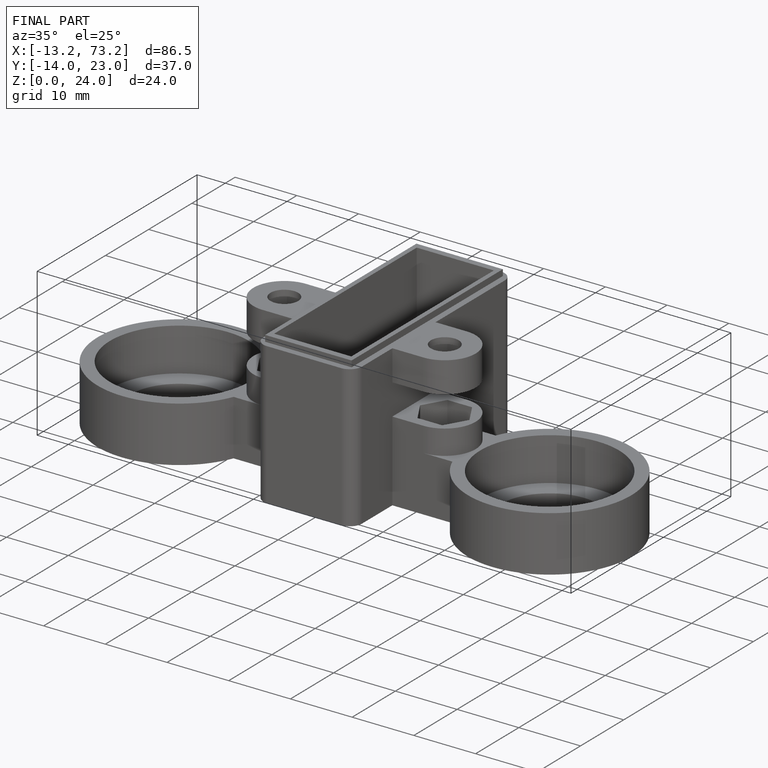
[diagram: finished part — iso view with bounding-box wireframe]
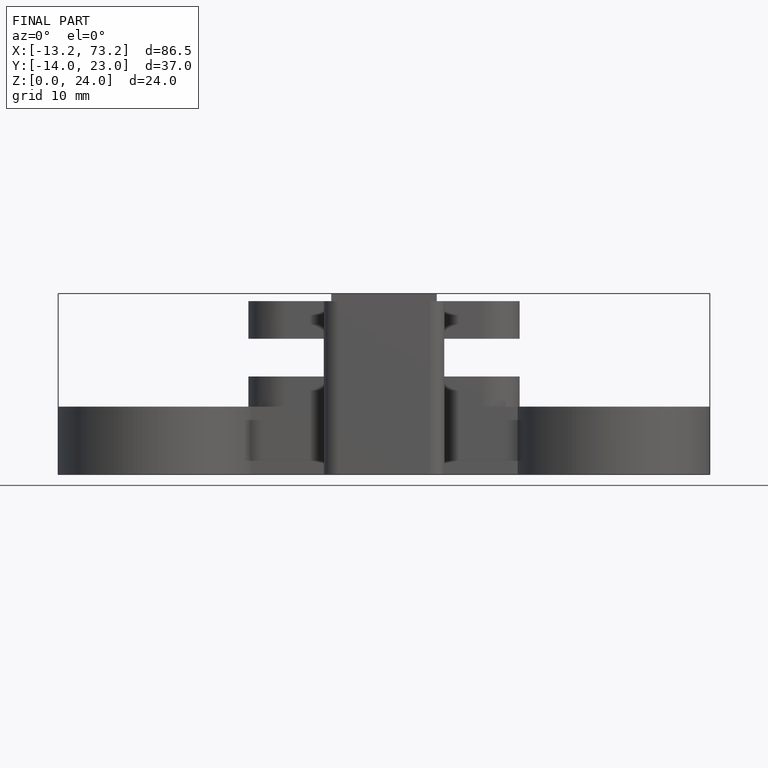
[diagram: finished part — front view with bounding-box wireframe]
